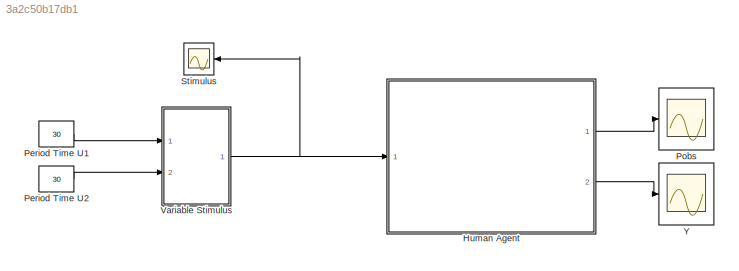
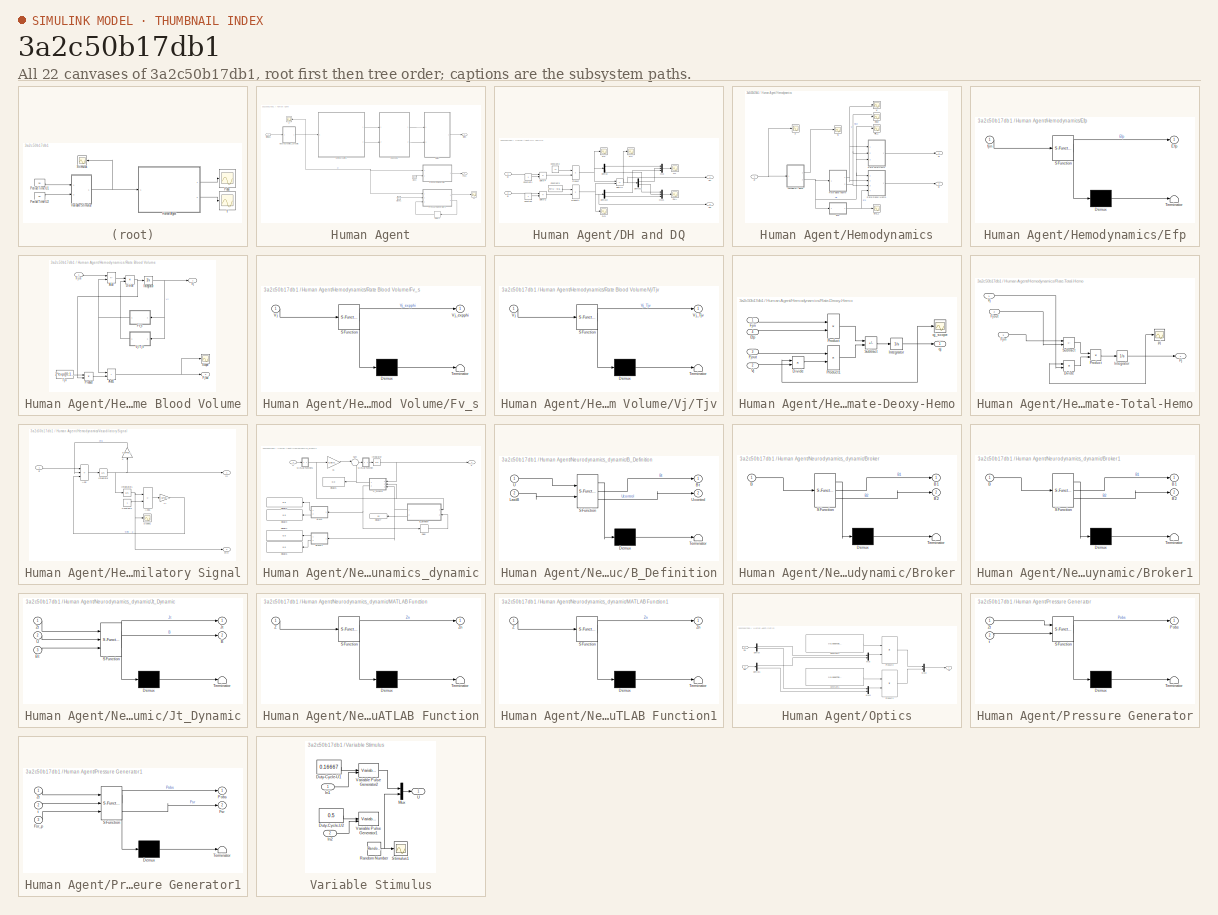
[diagram: thumbnail index - all 22 canvases of the model, root first then tree order]
MODEL slx_3a2c50b17db1
KIND model
CONFIG AbsTol = auto
CONFIG EnableMultiTasking = off
CONFIG FixedStep = 0.1
CONFIG MaxStep = auto
CONFIG MinStep = auto
CONFIG RelTol = 1e-3
CONFIG SampleTimeConstraint = Unconstrained
CONFIG SolverName = VariableStepAuto
CONFIG StartTime = 0.0
CONFIG StopTime = 30
BLOCK [SubSystem] Human Agent
  Ports = [1, 2]
  RequestExecContextInheritance = off
BLOCK [Clock] Human Agent/Clock
BLOCK [Clock] Human Agent/Clock1
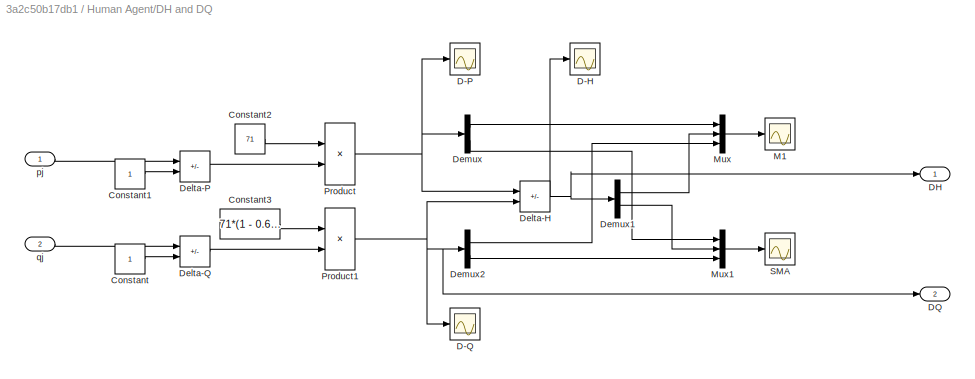
BLOCK [SubSystem] Human Agent/DH and DQ
  Ports = [2, 2]
  RequestExecContextInheritance = off
BLOCK [Constant] Human Agent/DH and DQ/Constant
BLOCK [Constant] Human Agent/DH and DQ/Constant1
BLOCK [Constant] Human Agent/DH and DQ/Constant2
  Value = 71
BLOCK [Constant] Human Agent/DH and DQ/Constant3
  Value = 71*(1 - 0.65)
BLOCK [Scope] Human Agent/DH and DQ/D-H
  Floating = off
  NumInputPorts = 1
  Ports = [1]
  ScopeSpecificationString = Simulink.scopes.TimeScopeBlockCfg('CurrentConfiguration', extmgr.ConfigurationSet(extmgr.Configuration('Core','General UI',true),extmgr.Configuration('Core','Source UI',true),extmgr.Configuration('Sources','WiredSimulink',true,'DataLoggingVariableName','ScopeData7'),extmgr.Configuration('Visuals','Time Domain',true,'SerializedDisplays',{struct('MinYLimReal','-2.91276','MaxYLimReal','17.16126','YLa...<+1449ch>
BLOCK [Scope] Human Agent/DH and DQ/D-P
  Floating = off
  NumInputPorts = 1
  Ports = [1]
  ScopeSpecificationString = Simulink.scopes.TimeScopeBlockCfg('CurrentConfiguration', extmgr.ConfigurationSet(extmgr.Configuration('Core','General UI',true),extmgr.Configuration('Core','Source UI',true),extmgr.Configuration('Sources','WiredSimulink',true,'DataLoggingVariableName','ScopeData5'),extmgr.Configuration('Visuals','Time Domain',true,'SerializedDisplays',{struct('MinYLimReal','-2.54989','MaxYLimReal','15.75385','YLa...<+1449ch>
BLOCK [Scope] Human Agent/DH and DQ/D-Q
  Floating = off
  NumInputPorts = 1
  Ports = [1]
  ScopeSpecificationString = Simulink.scopes.TimeScopeBlockCfg('CurrentConfiguration', extmgr.ConfigurationSet(extmgr.Configuration('Core','General UI',true),extmgr.Configuration('Core','Source UI',true),extmgr.Configuration('Sources','WiredSimulink',true,'DataLoggingVariableName','ScopeData6'),extmgr.Configuration('Visuals','Time Domain',true,'SerializedDisplays',{struct('MinYLimReal','-1.63975','MaxYLimReal','0.38869','YLab...<+1447ch>
BLOCK [Outport] Human Agent/DH and DQ/DH
BLOCK [Outport] Human Agent/DH and DQ/DQ
  Port = 2
BLOCK [Sum] Human Agent/DH and DQ/Delta-H
  IconShape = rectangular
  Inputs = +-
  Ports = [2, 1]
BLOCK [Sum] Human Agent/DH and DQ/Delta-P
  IconShape = rectangular
  Inputs = +-
  Ports = [2, 1]
BLOCK [Sum] Human Agent/DH and DQ/Delta-Q
  IconShape = rectangular
  Inputs = +-
  Ports = [2, 1]
BLOCK [Demux] Human Agent/DH and DQ/Demux
  Outputs = 2
  Ports = [1, 2]
BLOCK [Demux] Human Agent/DH and DQ/Demux1
  Outputs = 2
  Ports = [1, 2]
BLOCK [Demux] Human Agent/DH and DQ/Demux2
  Outputs = 2
  Ports = [1, 2]
BLOCK [Scope] Human Agent/DH and DQ/M1
  Floating = off
  NumInputPorts = 1
  Ports = [1]
  ScopeSpecificationString = Simulink.scopes.TimeScopeBlockCfg('CurrentConfiguration', extmgr.ConfigurationSet(extmgr.Configuration('Core','General UI',true),extmgr.Configuration('Core','Source UI',true),extmgr.Configuration('Sources','WiredSimulink',true,'DataLoggingVariableName','ScopeData8'),extmgr.Configuration('Visuals','Time Domain',true,'SerializedDisplays',{struct('MinYLimReal','-2.54514','MaxYLimReal','8.43627','YLab...<+1735ch>
BLOCK [Mux] Human Agent/DH and DQ/Mux
  DisplayOption = bar
  Inputs = 3
  Ports = [3, 1]
BLOCK [Mux] Human Agent/DH and DQ/Mux1
  DisplayOption = bar
  Inputs = 3
  Ports = [3, 1]
BLOCK [Product] Human Agent/DH and DQ/Product
  Ports = [2, 1]
BLOCK [Product] Human Agent/DH and DQ/Product1
  Ports = [2, 1]
BLOCK [Scope] Human Agent/DH and DQ/SMA
  Floating = off
  NumInputPorts = 1
  Ports = [1]
  ScopeSpecificationString = Simulink.scopes.TimeScopeBlockCfg('CurrentConfiguration', extmgr.ConfigurationSet(extmgr.Configuration('Core','General UI',true),extmgr.Configuration('Core','Source UI',true),extmgr.Configuration('Sources','WiredSimulink',true,'DataLoggingVariableName','ScopeData9'),extmgr.Configuration('Visuals','Time Domain',true,'SerializedDisplays',{struct('MinYLimReal','-3.33791','MaxYLimReal','17.25675','YLa...<+1774ch>
BLOCK [Inport] Human Agent/DH and DQ/pj
BLOCK [Inport] Human Agent/DH and DQ/qj
  Port = 2
BLOCK [Delay] Human Agent/Delay2
  DelayLength = 1
  InitialCondition = 0.0001
  InputPortMap = u0
  Ports = [1, 1]
BLOCK [SubSystem] Human Agent/Hemodynamics
  Ports = [1, 2]
  RequestExecContextInheritance = off
BLOCK [SubSystem] Human Agent/Hemodynamics/Efp
  ErrorFcn = Stateflow.Translate.translate
  PermitHierarchicalResolution = ExplicitOnly
  Ports = [1, 1]
  RequestExecContextInheritance = off
  SFBlockType = MATLAB Function
  TreatAsAtomicUnit = on
BLOCK [Demux] Human Agent/Hemodynamics/Efp/ Demux 
  Outputs = 1
  Ports = [1, 1]
BLOCK [S-Function] Human Agent/Hemodynamics/Efp/ SFunction 
  EnableBusSupport = on
  FunctionName = sf_sfun
  PortCounts = [1 2]
  Ports = [1, 2]
  SFcnIsStateOwnerBlock = off
  SFunctionDeploymentMode = off
  Tag = Stateflow S-Function 1
BLOCK [Terminator] Human Agent/Hemodynamics/Efp/ Terminator 
BLOCK [Outport] Human Agent/Hemodynamics/Efp/Efp
BLOCK [Inport] Human Agent/Hemodynamics/Efp/fjin
BLOCK [Scope] Human Agent/Hemodynamics/Efp_1
  Floating = off
  NumInputPorts = 1
  Ports = [1]
  ScopeSpecificationString = Simulink.scopes.TimeScopeBlockCfg('CurrentConfiguration', extmgr.ConfigurationSet(extmgr.Configuration('Core','General UI',true),extmgr.Configuration('Core','Source UI',true),extmgr.Configuration('Sources','WiredSimulink',true,'DataLoggingVariableName','ScopeData7'),extmgr.Configuration('Visuals','Time Domain',true,'SerializedDisplays',{struct('MinYLimReal','0.87922','MaxYLimReal','1.03497','YLabe...<+1400ch>
BLOCK [Scope] Human Agent/Hemodynamics/Fjin_1
  Floating = off
  NumInputPorts = 1
  Ports = [1]
  ScopeSpecificationString = Simulink.scopes.TimeScopeBlockCfg('CurrentConfiguration', extmgr.ConfigurationSet(extmgr.Configuration('Core','General UI',true),extmgr.Configuration('Core','Source UI',true),extmgr.Configuration('Sources','WiredSimulink',true,'DataLoggingVariableName','ScopeData6'),extmgr.Configuration('Visuals','Time Domain',true,'SerializedDisplays',{struct('MinYLimReal','0.95597','MaxYLimReal','1.16405','YLabe...<+1403ch>
BLOCK [Scope] Human Agent/Hemodynamics/Fjout
  Floating = off
  NumInputPorts = 1
  Ports = [1]
  ScopeSpecificationString = Simulink.scopes.TimeScopeBlockCfg('CurrentConfiguration', extmgr.ConfigurationSet(extmgr.Configuration('Core','General UI',true),extmgr.Configuration('Core','Source UI',true),extmgr.Configuration('Sources','WiredSimulink',true,'DataLoggingVariableName','ScopeData5'),extmgr.Configuration('Visuals','Time Domain',true,'SerializedDisplays',{struct('MinYLimReal','0.96309','MaxYLimReal','1.1501','YLabel...<+1400ch>
BLOCK [Outport] Human Agent/Hemodynamics/Pj
BLOCK [SubSystem] Human Agent/Hemodynamics/Rate Blood Volume
  Ports = [1, 2]
  RequestExecContextInheritance = off
BLOCK [Sum] Human Agent/Hemodynamics/Rate Blood Volume/Add
  IconShape = rectangular
  Inputs = +-
  Ports = [2, 1]
BLOCK [Sum] Human Agent/Hemodynamics/Rate Blood Volume/Add1
  IconShape = rectangular
  Ports = [2, 1]
BLOCK [Product] Human Agent/Hemodynamics/Rate Blood Volume/Divide
  Inputs = */
  Ports = [2, 1]
BLOCK [Inport] Human Agent/Hemodynamics/Rate Blood Volume/Fjin
BLOCK [Outport] Human Agent/Hemodynamics/Rate Blood Volume/Fjout
  Port = 2
BLOCK [SubSystem] Human Agent/Hemodynamics/Rate Blood Volume/Fv_s
  ErrorFcn = Stateflow.Translate.translate
  PermitHierarchicalResolution = ExplicitOnly
  Ports = [1, 1]
  RequestExecContextInheritance = off
  SFBlockType = MATLAB Function
  TreatAsAtomicUnit = on
BLOCK [Demux] Human Agent/Hemodynamics/Rate Blood Volume/Fv_s/ Demux 
  Outputs = 1
  Ports = [1, 1]
BLOCK [S-Function] Human Agent/Hemodynamics/Rate Blood Volume/Fv_s/ SFunction 
  EnableBusSupport = on
  FunctionName = sf_sfun
  PortCounts = [1 2]
  Ports = [1, 2]
  SFcnIsStateOwnerBlock = off
  SFunctionDeploymentMode = off
  Tag = Stateflow S-Function 10
BLOCK [Terminator] Human Agent/Hemodynamics/Rate Blood Volume/Fv_s/ Terminator 
BLOCK [Inport] Human Agent/Hemodynamics/Rate Blood Volume/Fv_s/Vj
BLOCK [Outport] Human Agent/Hemodynamics/Rate Blood Volume/Fv_s/Vj_expphi
BLOCK [Integrator] Human Agent/Hemodynamics/Rate Blood Volume/Integrator
  InitialCondition = exp([0;0])
  Ports = [1, 1]
BLOCK [Product] Human Agent/Hemodynamics/Rate Blood Volume/Product
  Ports = [2, 1]
BLOCK [Scope] Human Agent/Hemodynamics/Rate Blood Volume/Scope
  Floating = off
  NumInputPorts = 1
  Ports = [1]
  ScopeSpecificationString = Simulink.scopes.TimeScopeBlockCfg('CurrentConfiguration', extmgr.ConfigurationSet(extmgr.Configuration('Core','General UI',true),extmgr.Configuration('Core','Source UI',true),extmgr.Configuration('Sources','WiredSimulink',true,'DataLoggingVariableName','ScopeData2'),extmgr.Configuration('Visuals','Time Domain',true,'SerializedDisplays',{struct('MinYLimReal','0.96417','MaxYLimReal','1.14994','YLabe...<+1372ch>
BLOCK [Constant] Human Agent/Hemodynamics/Rate Blood Volume/Tjv
  Value = 2*exp([0;1])
BLOCK [Outport] Human Agent/Hemodynamics/Rate Blood Volume/Vj
BLOCK [SubSystem] Human Agent/Hemodynamics/Rate Blood Volume/Vj//Tjv
  ErrorFcn = Stateflow.Translate.translate
  PermitHierarchicalResolution = ExplicitOnly
  Ports = [1, 1]
  RequestExecContextInheritance = off
  SFBlockType = MATLAB Function
  TreatAsAtomicUnit = on
BLOCK [Demux] Human Agent/Hemodynamics/Rate Blood Volume/Vj//Tjv/ Demux 
  Outputs = 1
  Ports = [1, 1]
BLOCK [S-Function] Human Agent/Hemodynamics/Rate Blood Volume/Vj//Tjv/ SFunction 
  EnableBusSupport = on
  FunctionName = sf_sfun
  PortCounts = [1 2]
  Ports = [1, 2]
  SFcnIsStateOwnerBlock = off
  SFunctionDeploymentMode = off
  Tag = Stateflow S-Function 11
BLOCK [Terminator] Human Agent/Hemodynamics/Rate Blood Volume/Vj//Tjv/ Terminator 
BLOCK [Inport] Human Agent/Hemodynamics/Rate Blood Volume/Vj//Tjv/Vj
BLOCK [Outport] Human Agent/Hemodynamics/Rate Blood Volume/Vj//Tjv/Vj_Tjv
BLOCK [SubSystem] Human Agent/Hemodynamics/Rate-Deoxy-Hemo
  Ports = [4, 1]
  RequestExecContextInheritance = off
BLOCK [Product] Human Agent/Hemodynamics/Rate-Deoxy-Hemo/Divide
  Inputs = */
  Ports = [2, 1]
BLOCK [Inport] Human Agent/Hemodynamics/Rate-Deoxy-Hemo/Efp
  Port = 4
BLOCK [Inport] Human Agent/Hemodynamics/Rate-Deoxy-Hemo/Fjin
BLOCK [Inport] Human Agent/Hemodynamics/Rate-Deoxy-Hemo/Fjout
  Port = 3
BLOCK [Integrator] Human Agent/Hemodynamics/Rate-Deoxy-Hemo/Integrator
  InitialCondition = exp([0;0])
  Ports = [1, 1]
BLOCK [Product] Human Agent/Hemodynamics/Rate-Deoxy-Hemo/Product
  Ports = [2, 1]
BLOCK [Product] Human Agent/Hemodynamics/Rate-Deoxy-Hemo/Product1
  Ports = [2, 1]
BLOCK [Sum] Human Agent/Hemodynamics/Rate-Deoxy-Hemo/Subtract
  IconShape = rectangular
  Inputs = +-
  Ports = [2, 1]
BLOCK [Inport] Human Agent/Hemodynamics/Rate-Deoxy-Hemo/Vj
  Port = 2
BLOCK [Outport] Human Agent/Hemodynamics/Rate-Deoxy-Hemo/qj
BLOCK [Scope] Human Agent/Hemodynamics/Rate-Deoxy-Hemo/qj_scope
  Floating = off
  NumInputPorts = 1
  Ports = [1]
  ScopeSpecificationString = Simulink.scopes.TimeScopeBlockCfg('CurrentConfiguration', extmgr.ConfigurationSet(extmgr.Configuration('Core','General UI',true),extmgr.Configuration('Core','Source UI',true),extmgr.Configuration('Sources','WiredSimulink',true,'DataLoggingVariableName','ScopeData1'),extmgr.Configuration('Visuals','Time Domain',true,'SerializedDisplays',{struct('MinYLimReal','0.9335','MaxYLimReal','1.01624','YLabel...<+1411ch>
BLOCK [SubSystem] Human Agent/Hemodynamics/Rate-Total-Hemo
  Ports = [3, 1]
  RequestExecContextInheritance = off
BLOCK [Product] Human Agent/Hemodynamics/Rate-Total-Hemo/Divide
  Inputs = */
  Ports = [2, 1]
BLOCK [Inport] Human Agent/Hemodynamics/Rate-Total-Hemo/Fjin
  Port = 3
BLOCK [Inport] Human Agent/Hemodynamics/Rate-Total-Hemo/Fjout
  Port = 2
BLOCK [Integrator] Human Agent/Hemodynamics/Rate-Total-Hemo/Integrator
  InitialCondition = exp([0;0])
  Ports = [1, 1]
BLOCK [Outport] Human Agent/Hemodynamics/Rate-Total-Hemo/Pj
BLOCK [Product] Human Agent/Hemodynamics/Rate-Total-Hemo/Product
  Ports = [2, 1]
BLOCK [Sum] Human Agent/Hemodynamics/Rate-Total-Hemo/Subtract
  IconShape = rectangular
  Inputs = +-
  Ports = [2, 1]
BLOCK [Inport] Human Agent/Hemodynamics/Rate-Total-Hemo/Vj
BLOCK [Scope] Human Agent/Hemodynamics/Rate-Total-Hemo/pj
  Floating = off
  NumInputPorts = 1
  Ports = [1]
  ScopeSpecificationString = Simulink.scopes.TimeScopeBlockCfg('CurrentConfiguration', extmgr.ConfigurationSet(extmgr.Configuration('Core','General UI',true),extmgr.Configuration('Core','Source UI',true),extmgr.Configuration('Sources','WiredSimulink',true,'DataLoggingVariableName','ScopeData2'),extmgr.Configuration('Visuals','Time Domain',true,'SerializedDisplays',{struct('MinYLimReal','0.96327','MaxYLimReal','1.22259','YLabe...<+1415ch>
BLOCK [Scope] Human Agent/Hemodynamics/Sj
  Floating = off
  NumInputPorts = 1
  Ports = [1]
  ScopeSpecificationString = Simulink.scopes.TimeScopeBlockCfg('CurrentConfiguration', extmgr.ConfigurationSet(extmgr.Configuration('Core','General UI',true),extmgr.Configuration('Core','Source UI',true),extmgr.Configuration('Sources','WiredSimulink',true,'DataLoggingVariableName','ScopeData1'),extmgr.Configuration('Visuals','Time Domain',true,'SerializedDisplays',{struct('MinYLimReal','-0.04954','MaxYLimReal','0.04574','YLab...<+1438ch>
BLOCK [SubSystem] Human Agent/Hemodynamics/Vasodilatory Signal
  Ports = [1, 2]
  RequestExecContextInheritance = off
BLOCK [Sum] Human Agent/Hemodynamics/Vasodilatory Signal/Add
  IconShape = rectangular
  Inputs = +--
  Ports = [3, 1]
BLOCK [Sum] Human Agent/Hemodynamics/Vasodilatory Signal/Add1
  IconShape = rectangular
  Inputs = +-
  Ports = [2, 1]
BLOCK [Constant] Human Agent/Hemodynamics/Vasodilatory Signal/Constant1
BLOCK [Outport] Human Agent/Hemodynamics/Vasodilatory Signal/Fjin
  Port = 2
BLOCK [Integrator] Human Agent/Hemodynamics/Vasodilatory Signal/Integrator
  Ports = [1, 1]
BLOCK [Integrator] Human Agent/Hemodynamics/Vasodilatory Signal/Integrator1
  InitialCondition = exp([0;0])
  Ports = [1, 1]
BLOCK [Gain] Human Agent/Hemodynamics/Vasodilatory Signal/K
  Gain = 0.64*exp([0;0.05])
  NameLocation = right
BLOCK [Scope] Human Agent/Hemodynamics/Vasodilatory Signal/Scope1
  Floating = off
  NumInputPorts = 1
  Ports = [1]
  ScopeSpecificationString = Simulink.scopes.TimeScopeBlockCfg('CurrentConfiguration', extmgr.ConfigurationSet(extmgr.Configuration('Core','General UI',true),extmgr.Configuration('Core','Source UI',true),extmgr.Configuration('Sources','WiredSimulink',true,'DataLoggingVariableName','ScopeData1'),extmgr.Configuration('Visuals','Time Domain',true,'SerializedDisplays',{struct('MinYLimReal','-0.02898','MaxYLimReal','0.08445','YLab...<+1370ch>
BLOCK [Outport] Human Agent/Hemodynamics/Vasodilatory Signal/Sj
BLOCK [Gain] Human Agent/Hemodynamics/Vasodilatory Signal/Yj
  Gain = 0.32*exp([0;0.05])
BLOCK [Inport] Human Agent/Hemodynamics/Vasodilatory Signal/Zj
BLOCK [Scope] Human Agent/Hemodynamics/Vj
  Floating = off
  NumInputPorts = 1
  Ports = [1]
  ScopeSpecificationString = Simulink.scopes.TimeScopeBlockCfg('CurrentConfiguration', extmgr.ConfigurationSet(extmgr.Configuration('Core','General UI',true),extmgr.Configuration('Core','Source UI',true),extmgr.Configuration('Sources','WiredSimulink',true,'DataLoggingVariableName','ScopeData4'),extmgr.Configuration('Visuals','Time Domain',true,'SerializedDisplays',{struct('MinYLimReal','0.99041','MaxYLimReal','1.04043','YLabe...<+1398ch>
BLOCK [Scope] Human Agent/Hemodynamics/Z
  Floating = off
  NumInputPorts = 1
  Ports = [1]
  ScopeSpecificationString = Simulink.scopes.TimeScopeBlockCfg('CurrentConfiguration', extmgr.ConfigurationSet(extmgr.Configuration('Core','General UI',true),extmgr.Configuration('Core','Source UI',true),extmgr.Configuration('Sources','WiredSimulink',true),extmgr.Configuration('Visuals','Time Domain',true,'SerializedDisplays',{struct('MinYLimReal','-0.0098','MaxYLimReal','0.05168','YLabelReal','','MinYLimMag','0.00000','MaxYL...<+1357ch>
BLOCK [Inport] Human Agent/Hemodynamics/Zj
BLOCK [Outport] Human Agent/Hemodynamics/qj
  Port = 2
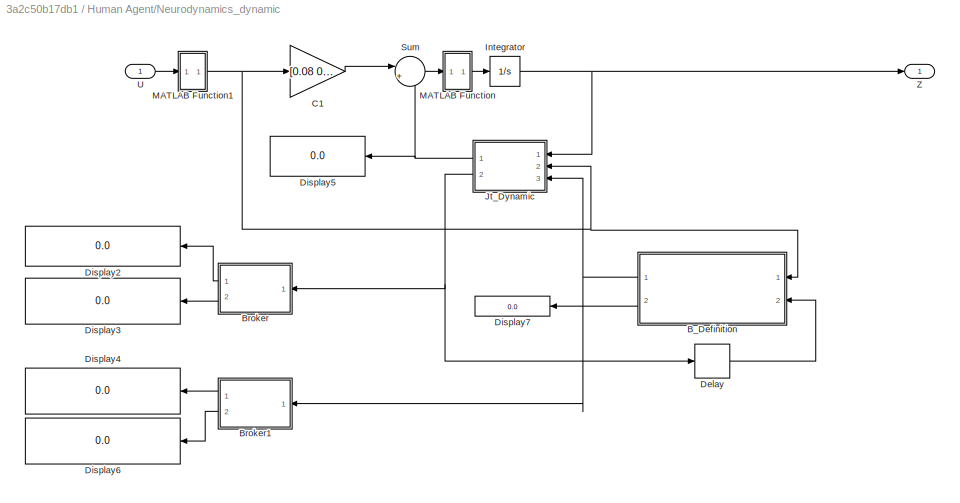
BLOCK [SubSystem] Human Agent/Neurodynamics_dynamic
  Ports = [1, 1]
  RequestExecContextInheritance = off
BLOCK [SubSystem] Human Agent/Neurodynamics_dynamic/B_Definition
  ErrorFcn = Stateflow.Translate.translate
  PermitHierarchicalResolution = ExplicitOnly
  Ports = [2, 2]
  RequestExecContextInheritance = off
  SFBlockType = MATLAB Function
  TreatAsAtomicUnit = on
BLOCK [Demux] Human Agent/Neurodynamics_dynamic/B_Definition/ Demux 
  Outputs = 1
  Ports = [1, 1]
BLOCK [S-Function] Human Agent/Neurodynamics_dynamic/B_Definition/ SFunction 
  EnableBusSupport = on
  FunctionName = sf_sfun
  PortCounts = [2 3]
  Ports = [2, 3]
  SFcnIsStateOwnerBlock = off
  SFunctionDeploymentMode = off
  Tag = Stateflow S-Function 16
BLOCK [Terminator] Human Agent/Neurodynamics_dynamic/B_Definition/ Terminator 
BLOCK [Outport] Human Agent/Neurodynamics_dynamic/B_Definition/Bt
BLOCK [Inport] Human Agent/Neurodynamics_dynamic/B_Definition/LastB
  Port = 2
BLOCK [Inport] Human Agent/Neurodynamics_dynamic/B_Definition/U
BLOCK [Outport] Human Agent/Neurodynamics_dynamic/B_Definition/Ucontrol
  Port = 2
BLOCK [SubSystem] Human Agent/Neurodynamics_dynamic/Broker
  ErrorFcn = Stateflow.Translate.translate
  PermitHierarchicalResolution = ExplicitOnly
  Ports = [1, 2]
  RequestExecContextInheritance = off
  SFBlockType = MATLAB Function
  TreatAsAtomicUnit = on
BLOCK [Demux] Human Agent/Neurodynamics_dynamic/Broker/ Demux 
  Outputs = 1
  Ports = [1, 1]
BLOCK [S-Function] Human Agent/Neurodynamics_dynamic/Broker/ SFunction 
  EnableBusSupport = on
  FunctionName = sf_sfun
  PortCounts = [1 3]
  Ports = [1, 3]
  SFcnIsStateOwnerBlock = off
  SFunctionDeploymentMode = off
  Tag = Stateflow S-Function 17
BLOCK [Terminator] Human Agent/Neurodynamics_dynamic/Broker/ Terminator 
BLOCK [Inport] Human Agent/Neurodynamics_dynamic/Broker/B
BLOCK [Outport] Human Agent/Neurodynamics_dynamic/Broker/B1
BLOCK [Outport] Human Agent/Neurodynamics_dynamic/Broker/B2
  Port = 2
BLOCK [SubSystem] Human Agent/Neurodynamics_dynamic/Broker1
  ErrorFcn = Stateflow.Translate.translate
  PermitHierarchicalResolution = ExplicitOnly
  Ports = [1, 2]
  RequestExecContextInheritance = off
  SFBlockType = MATLAB Function
  TreatAsAtomicUnit = on
BLOCK [Demux] Human Agent/Neurodynamics_dynamic/Broker1/ Demux 
  Outputs = 1
  Ports = [1, 1]
BLOCK [S-Function] Human Agent/Neurodynamics_dynamic/Broker1/ SFunction 
  EnableBusSupport = on
  FunctionName = sf_sfun
  PortCounts = [1 3]
  Ports = [1, 3]
  SFcnIsStateOwnerBlock = off
  SFunctionDeploymentMode = off
  Tag = Stateflow S-Function 18
BLOCK [Terminator] Human Agent/Neurodynamics_dynamic/Broker1/ Terminator 
BLOCK [Inport] Human Agent/Neurodynamics_dynamic/Broker1/B
BLOCK [Outport] Human Agent/Neurodynamics_dynamic/Broker1/B1
BLOCK [Outport] Human Agent/Neurodynamics_dynamic/Broker1/B2
  Port = 2
BLOCK [Gain] Human Agent/Neurodynamics_dynamic/C1
  Gain = [0.08 0;0.06 0]
  Multiplication = Matrix(K*u) (u vector)
BLOCK [Delay] Human Agent/Neurodynamics_dynamic/Delay
  DelayLength = 1
  InitialCondition = 0
  InputPortMap = u0
  NameLocation = top
  Ports = [1, 1]
BLOCK [Display] Human Agent/Neurodynamics_dynamic/Display2
  Decimation = 1
  Ports = [1]
BLOCK [Display] Human Agent/Neurodynamics_dynamic/Display3
  Decimation = 1
  Ports = [1]
BLOCK [Display] Human Agent/Neurodynamics_dynamic/Display4
  Decimation = 1
  Ports = [1]
BLOCK [Display] Human Agent/Neurodynamics_dynamic/Display5
  Decimation = 1
  Ports = [1]
BLOCK [Display] Human Agent/Neurodynamics_dynamic/Display6
  Decimation = 1
  Ports = [1]
BLOCK [Display] Human Agent/Neurodynamics_dynamic/Display7
  Decimation = 1
  Ports = [1]
BLOCK [Integrator] Human Agent/Neurodynamics_dynamic/Integrator
  Ports = [1, 1]
BLOCK [SubSystem] Human Agent/Neurodynamics_dynamic/Jt_Dynamic
  ErrorFcn = Stateflow.Translate.translate
  PermitHierarchicalResolution = ExplicitOnly
  Ports = [3, 2]
  RequestExecContextInheritance = off
  SFBlockType = MATLAB Function
  TreatAsAtomicUnit = on
BLOCK [Demux] Human Agent/Neurodynamics_dynamic/Jt_Dynamic/ Demux 
  Outputs = 1
  Ports = [1, 1]
BLOCK [S-Function] Human Agent/Neurodynamics_dynamic/Jt_Dynamic/ SFunction 
  EnableBusSupport = on
  FunctionName = sf_sfun
  PortCounts = [3 3]
  Ports = [3, 3]
  SFcnIsStateOwnerBlock = off
  SFunctionDeploymentMode = off
  Tag = Stateflow S-Function 20
BLOCK [Terminator] Human Agent/Neurodynamics_dynamic/Jt_Dynamic/ Terminator 
BLOCK [Outport] Human Agent/Neurodynamics_dynamic/Jt_Dynamic/B
  Port = 2
BLOCK [Inport] Human Agent/Neurodynamics_dynamic/Jt_Dynamic/Bt
  Port = 3
BLOCK [Outport] Human Agent/Neurodynamics_dynamic/Jt_Dynamic/Jt
BLOCK [Inport] Human Agent/Neurodynamics_dynamic/Jt_Dynamic/U
  Port = 2
BLOCK [Inport] Human Agent/Neurodynamics_dynamic/Jt_Dynamic/Zt
BLOCK [SubSystem] Human Agent/Neurodynamics_dynamic/MATLAB Function
  ErrorFcn = Stateflow.Translate.translate
  PermitHierarchicalResolution = ExplicitOnly
  Ports = [1, 1]
  RequestExecContextInheritance = off
  SFBlockType = MATLAB Function
  TreatAsAtomicUnit = on
BLOCK [Demux] Human Agent/Neurodynamics_dynamic/MATLAB Function/ Demux 
  Outputs = 1
  Ports = [1, 1]
BLOCK [S-Function] Human Agent/Neurodynamics_dynamic/MATLAB Function/ SFunction 
  EnableBusSupport = on
  FunctionName = sf_sfun
  PortCounts = [1 2]
  Ports = [1, 2]
  SFcnIsStateOwnerBlock = off
  SFunctionDeploymentMode = off
  Tag = Stateflow S-Function 21
BLOCK [Terminator] Human Agent/Neurodynamics_dynamic/MATLAB Function/ Terminator 
BLOCK [Inport] Human Agent/Neurodynamics_dynamic/MATLAB Function/Z
BLOCK [Outport] Human Agent/Neurodynamics_dynamic/MATLAB Function/Zn
BLOCK [SubSystem] Human Agent/Neurodynamics_dynamic/MATLAB Function1
  ErrorFcn = Stateflow.Translate.translate
  PermitHierarchicalResolution = ExplicitOnly
  Ports = [1, 1]
  RequestExecContextInheritance = off
  SFBlockType = MATLAB Function
  TreatAsAtomicUnit = on
BLOCK [Demux] Human Agent/Neurodynamics_dynamic/MATLAB Function1/ Demux 
  Outputs = 1
  Ports = [1, 1]
BLOCK [S-Function] Human Agent/Neurodynamics_dynamic/MATLAB Function1/ SFunction 
  EnableBusSupport = on
  FunctionName = sf_sfun
  PortCounts = [1 2]
  Ports = [1, 2]
  SFcnIsStateOwnerBlock = off
  SFunctionDeploymentMode = off
  Tag = Stateflow S-Function 22
BLOCK [Terminator] Human Agent/Neurodynamics_dynamic/MATLAB Function1/ Terminator 
BLOCK [Inport] Human Agent/Neurodynamics_dynamic/MATLAB Function1/Z
BLOCK [Outport] Human Agent/Neurodynamics_dynamic/MATLAB Function1/Zn
BLOCK [Sum] Human Agent/Neurodynamics_dynamic/Sum
  Inputs = |++
  Ports = [2, 1]
BLOCK [Inport] Human Agent/Neurodynamics_dynamic/U
BLOCK [Outport] Human Agent/Neurodynamics_dynamic/Z
BLOCK [SubSystem] Human Agent/Optics
  Ports = [2, 1]
  RequestExecContextInheritance = off
BLOCK [Constant] Human Agent/Optics/Constant1
  Value = [(0.00007358252*7.5) (0.0001104714*6.5);(0.0001159306*7.5) (0.00007858993*6.5)]
BLOCK [Constant] Human Agent/Optics/Constant4
  Value = [(0.00007358252*7.5) (0.0001104714*6.5);(0.0001159306*7.5) (0.00007858993*6.5)]
BLOCK [Inport] Human Agent/Optics/DH
BLOCK [Inport] Human Agent/Optics/DQ
  Port = 2
BLOCK [Demux] Human Agent/Optics/Demux
  Outputs = 2
  Ports = [1, 2]
BLOCK [Demux] Human Agent/Optics/Demux1
  Outputs = 2
  Ports = [1, 2]
BLOCK [Mux] Human Agent/Optics/Mux
  DisplayOption = bar
  Inputs = 2
  Ports = [2, 1]
BLOCK [Mux] Human Agent/Optics/Mux1
  DisplayOption = bar
  Inputs = 2
  Ports = [2, 1]
BLOCK [Mux] Human Agent/Optics/Mux2
  DisplayOption = bar
  Inputs = 2
  Ports = [2, 1]
BLOCK [Product] Human Agent/Optics/Product1
  Multiplication = Matrix(*)
  Ports = [2, 1]
BLOCK [Product] Human Agent/Optics/Product2
  Multiplication = Matrix(*)
  Ports = [2, 1]
BLOCK [Outport] Human Agent/Optics/Y1
BLOCK [Outport] Human Agent/Pobs
BLOCK [SubSystem] Human Agent/Pressure Generator
  ErrorFcn = Stateflow.Translate.translate
  PermitHierarchicalResolution = ExplicitOnly
  Ports = [2, 1]
  RequestExecContextInheritance = off
  SFBlockType = MATLAB Function
  TreatAsAtomicUnit = on
BLOCK [Demux] Human Agent/Pressure Generator/ Demux 
  Outputs = 1
  Ports = [1, 1]
BLOCK [S-Function] Human Agent/Pressure Generator/ SFunction 
  EnableBusSupport = on
  FunctionName = sf_sfun
  PortCounts = [2 2]
  Ports = [2, 2]
  SFcnIsStateOwnerBlock = off
  SFunctionDeploymentMode = off
  Tag = Stateflow S-Function 2
BLOCK [Terminator] Human Agent/Pressure Generator/ Terminator 
BLOCK [Outport] Human Agent/Pressure Generator/Pobs
BLOCK [Inport] Human Agent/Pressure Generator/Zt
BLOCK [Inport] Human Agent/Pressure Generator/t
  Port = 2
BLOCK [SubSystem] Human Agent/Pressure Generator1
  ErrorFcn = Stateflow.Translate.translate
  PermitHierarchicalResolution = ExplicitOnly
  Ports = [3, 2]
  RequestExecContextInheritance = off
  SFBlockType = MATLAB Function
  TreatAsAtomicUnit = on
BLOCK [Demux] Human Agent/Pressure Generator1/ Demux 
  Outputs = 1
  Ports = [1, 1]
BLOCK [S-Function] Human Agent/Pressure Generator1/ SFunction 
  EnableBusSupport = on
  FunctionName = sf_sfun
  PortCounts = [3 3]
  Ports = [3, 3]
  SFcnIsStateOwnerBlock = off
  SFunctionDeploymentMode = off
  Tag = Stateflow S-Function 3
BLOCK [Terminator] Human Agent/Pressure Generator1/ Terminator 
BLOCK [Outport] Human Agent/Pressure Generator1/Fsr
  Port = 2
BLOCK [Inport] Human Agent/Pressure Generator1/Fsr_p
  Port = 3
BLOCK [Outport] Human Agent/Pressure Generator1/Pobs
BLOCK [Inport] Human Agent/Pressure Generator1/Zt
BLOCK [Inport] Human Agent/Pressure Generator1/t
  Port = 2
BLOCK [Inport] Human Agent/Stimulus
BLOCK [Scope] Human Agent/Z
  Floating = off
  NumInputPorts = 1
  Ports = [1]
  ScopeSpecificationString = Simulink.scopes.TimeScopeBlockCfg('CurrentConfiguration', extmgr.ConfigurationSet(extmgr.Configuration('Core','General UI',true,'FigureColor',[0 0 0]),extmgr.Configuration('Core','Source UI',true),extmgr.Configuration('Sources','WiredSimulink',true,'DataLoggingVariableName','ScopeData1'),extmgr.Configuration('Visuals','Time Domain',true,'SerializedDisplays',{struct('MinYLimReal','-0.00965','MaxYLi...<+1646ch>
BLOCK [Scope] Human Agent/Z1
  Floating = off
  NumInputPorts = 1
  Ports = [1]
  ScopeSpecificationString = Simulink.scopes.TimeScopeBlockCfg('CurrentConfiguration', extmgr.ConfigurationSet(extmgr.Configuration('Core','General UI',true,'FigureColor',[0 0 0]),extmgr.Configuration('Core','Source UI',true),extmgr.Configuration('Sources','WiredSimulink',true,'DataLoggingVariableName','ScopeData1'),extmgr.Configuration('Visuals','Time Domain',true,'SerializedDisplays',{struct('MinYLimReal','-0.08252','MaxYLi...<+1651ch>
BLOCK [Outport] Human Agent/fNIRS
  Port = 2
BLOCK [Constant] Period Time U1
  Value = 30
BLOCK [Constant] Period Time U2
  Value = 30
BLOCK [Scope] Pobs
  Floating = off
  NumInputPorts = 1
  Ports = [1]
  ScopeSpecificationString = Simulink.scopes.TimeScopeBlockCfg('CurrentConfiguration', extmgr.ConfigurationSet(extmgr.Configuration('Core','General UI',true,'FigureColor',[1 1 1]),extmgr.Configuration('Core','Source UI',true),extmgr.Configuration('Sources','WiredSimulink',true,'DataLoggingVariableName','ScopeData1'),extmgr.Configuration('Visuals','Time Domain',true,'SerializedDisplays',{struct('MinYLimReal','-0.00838','MaxYLi...<+2109ch>
BLOCK [Scope] Stimulus
  Floating = off
  NumInputPorts = 1
  Ports = [1]
  ScopeSpecificationString = Simulink.scopes.TimeScopeBlockCfg('CurrentConfiguration', extmgr.ConfigurationSet(extmgr.Configuration('Core','General UI',true,'FigureColor',[0 0 0]),extmgr.Configuration('Core','Source UI',true),extmgr.Configuration('Sources','WiredSimulink',true,'DataLoggingVariableName','ScopeData1'),extmgr.Configuration('Visuals','Time Domain',true,'SerializedDisplays',{struct('MinYLimReal','-1.2445','MaxYLim...<+1692ch>
BLOCK [SubSystem] Variable Stimulus
  Ports = [2, 1]
  RequestExecContextInheritance = off
BLOCK [Constant] Variable Stimulus/Duty-Cycle-U1
  OutMax = [0.8]
  OutMin = [0]
  Value = 0.16667
BLOCK [Constant] Variable Stimulus/Duty-Cycle-U2
  OutMax = [0.8]
  OutMin = [0]
  Value = 0.5
BLOCK [Inport] Variable Stimulus/In1
BLOCK [Inport] Variable Stimulus/In2
  Port = 2
BLOCK [Mux] Variable Stimulus/Mux
  DisplayOption = bar
  Inputs = 2
  Ports = [2, 1]
BLOCK [RandomNumber] Variable Stimulus/Random Number
  SampleTime = 0.03
  Variance = 0.1
BLOCK [Scope] Variable Stimulus/Stimulus1
  Floating = off
  NumInputPorts = 1
  Ports = [1]
  ScopeSpecificationString = Simulink.scopes.TimeScopeBlockCfg('CurrentConfiguration', extmgr.ConfigurationSet(extmgr.Configuration('Core','General UI',true,'FigureColor',[0 0 0]),extmgr.Configuration('Core','Source UI',true),extmgr.Configuration('Sources','WiredSimulink',true,'DataLoggingVariableName','ScopeData1'),extmgr.Configuration('Visuals','Time Domain',true,'SerializedDisplays',{struct('MinYLimReal','-1.2445','MaxYLim...<+1686ch>
BLOCK [Outport] Variable Stimulus/U
BLOCK [VariablePulseGenerator] Variable Stimulus/Variable Pulse Generator1
  RunAtFixedTimeIntervals = on
  SampleTime = 1/10.4
BLOCK [VariablePulseGenerator] Variable Stimulus/Variable Pulse Generator2
  RunAtFixedTimeIntervals = on
  SampleTime = 1/10.4
BLOCK [Scope] Y
  Floating = off
  NumInputPorts = 1
  Ports = [1]
  ScopeSpecificationString = Simulink.scopes.TimeScopeBlockCfg('CurrentConfiguration', extmgr.ConfigurationSet(extmgr.Configuration('Core','General UI',true,'FigureColor',[1 1 1]),extmgr.Configuration('Core','Source UI',true),extmgr.Configuration('Sources','WiredSimulink',true,'DataLoggingVariableName','ScopeData2'),extmgr.Configuration('Visuals','Time Domain',true,'SerializedDisplays',{struct('MinYLimReal','-0.00213','MaxYLi...<+2161ch>
LINE Human Agent/Clock1:1 -> Human Agent/Pressure Generator1:2
LINE Human Agent/Clock:1 -> Human Agent/Pressure Generator:2
LINE Human Agent/DH and DQ/Constant1:1 -> Human Agent/DH and DQ/Delta-P:2
LINE Human Agent/DH and DQ/Constant2:1 -> Human Agent/DH and DQ/Product:1
LINE Human Agent/DH and DQ/Constant3:1 -> Human Agent/DH and DQ/Product1:1
LINE Human Agent/DH and DQ/Constant:1 -> Human Agent/DH and DQ/Delta-Q:2
NET Human Agent/DH and DQ/Delta-H:1 -> Human Agent/DH and DQ/D-H:1, Human Agent/DH and DQ/DH:1, Human Agent/DH and DQ/Demux1:1
LINE Human Agent/DH and DQ/Delta-P:1 -> Human Agent/DH and DQ/Product:2
LINE Human Agent/DH and DQ/Delta-Q:1 -> Human Agent/DH and DQ/Product1:2
LINE Human Agent/DH and DQ/Demux1:1 -> Human Agent/DH and DQ/Mux:2
LINE Human Agent/DH and DQ/Demux1:2 -> Human Agent/DH and DQ/Mux1:2
LINE Human Agent/DH and DQ/Demux2:1 -> Human Agent/DH and DQ/Mux:3
LINE Human Agent/DH and DQ/Demux2:2 -> Human Agent/DH and DQ/Mux1:3
LINE Human Agent/DH and DQ/Demux:1 -> Human Agent/DH and DQ/Mux:1
LINE Human Agent/DH and DQ/Demux:2 -> Human Agent/DH and DQ/Mux1:1
LINE Human Agent/DH and DQ/Mux1:1 -> Human Agent/DH and DQ/SMA:1
LINE Human Agent/DH and DQ/Mux:1 -> Human Agent/DH and DQ/M1:1
NET Human Agent/DH and DQ/Product1:1 -> Human Agent/DH and DQ/D-Q:1, Human Agent/DH and DQ/DQ:1, Human Agent/DH and DQ/Delta-H:2, Human Agent/DH and DQ/Demux2:1
NET Human Agent/DH and DQ/Product:1 -> Human Agent/DH and DQ/D-P:1, Human Agent/DH and DQ/Delta-H:1, Human Agent/DH and DQ/Demux:1
LINE Human Agent/DH and DQ/pj:1 -> Human Agent/DH and DQ/Delta-P:1
LINE Human Agent/DH and DQ/qj:1 -> Human Agent/DH and DQ/Delta-Q:1
LINE Human Agent/DH and DQ:1 -> Human Agent/Optics:1
LINE Human Agent/DH and DQ:2 -> Human Agent/Optics:2
LINE Human Agent/Delay2:1 -> Human Agent/Pressure Generator1:3
NET Human Agent/Hemodynamics/Efp:1 -> Human Agent/Hemodynamics/Efp_1:1, Human Agent/Hemodynamics/Rate-Deoxy-Hemo:4
NET Human Agent/Hemodynamics/Rate Blood Volume/Add1:1 -> Human Agent/Hemodynamics/Rate Blood Volume/Fjout:1, Human Agent/Hemodynamics/Rate Blood Volume/Scope:1
LINE Human Agent/Hemodynamics/Rate Blood Volume/Add:1 -> Human Agent/Hemodynamics/Rate Blood Volume/Divide:1
NET Human Agent/Hemodynamics/Rate Blood Volume/Divide:1 -> Human Agent/Hemodynamics/Rate Blood Volume/Integrator:1, Human Agent/Hemodynamics/Rate Blood Volume/Product:2
LINE Human Agent/Hemodynamics/Rate Blood Volume/Fjin:1 -> Human Agent/Hemodynamics/Rate Blood Volume/Add:1
NET Human Agent/Hemodynamics/Rate Blood Volume/Fv_s:1 -> Human Agent/Hemodynamics/Rate Blood Volume/Add1:1, Human Agent/Hemodynamics/Rate Blood Volume/Add:2
NET Human Agent/Hemodynamics/Rate Blood Volume/Integrator:1 -> Human Agent/Hemodynamics/Rate Blood Volume/Fv_s:1, Human Agent/Hemodynamics/Rate Blood Volume/Vj//Tjv:1, Human Agent/Hemodynamics/Rate Blood Volume/Vj:1
LINE Human Agent/Hemodynamics/Rate Blood Volume/Product:1 -> Human Agent/Hemodynamics/Rate Blood Volume/Add1:2
LINE Human Agent/Hemodynamics/Rate Blood Volume/Tjv:1 -> Human Agent/Hemodynamics/Rate Blood Volume/Product:1
LINE Human Agent/Hemodynamics/Rate Blood Volume/Vj//Tjv:1 -> Human Agent/Hemodynamics/Rate Blood Volume/Divide:2
NET Human Agent/Hemodynamics/Rate Blood Volume:1 -> Human Agent/Hemodynamics/Rate-Deoxy-Hemo:2, Human Agent/Hemodynamics/Rate-Total-Hemo:1, Human Agent/Hemodynamics/Vj:1
NET Human Agent/Hemodynamics/Rate Blood Volume:2 -> Human Agent/Hemodynamics/Fjout:1, Human Agent/Hemodynamics/Rate-Deoxy-Hemo:3, Human Agent/Hemodynamics/Rate-Total-Hemo:2
LINE Human Agent/Hemodynamics/Rate-Deoxy-Hemo/Divide:1 -> Human Agent/Hemodynamics/Rate-Deoxy-Hemo/Product1:2
LINE Human Agent/Hemodynamics/Rate-Deoxy-Hemo/Efp:1 -> Human Agent/Hemodynamics/Rate-Deoxy-Hemo/Product:2
LINE Human Agent/Hemodynamics/Rate-Deoxy-Hemo/Fjin:1 -> Human Agent/Hemodynamics/Rate-Deoxy-Hemo/Product:1
LINE Human Agent/Hemodynamics/Rate-Deoxy-Hemo/Fjout:1 -> Human Agent/Hemodynamics/Rate-Deoxy-Hemo/Product1:1
NET Human Agent/Hemodynamics/Rate-Deoxy-Hemo/Integrator:1 -> Human Agent/Hemodynamics/Rate-Deoxy-Hemo/Divide:1, Human Agent/Hemodynamics/Rate-Deoxy-Hemo/qj:1, Human Agent/Hemodynamics/Rate-Deoxy-Hemo/qj_scope:1
LINE Human Agent/Hemodynamics/Rate-Deoxy-Hemo/Product1:1 -> Human Agent/Hemodynamics/Rate-Deoxy-Hemo/Subtract:2
LINE Human Agent/Hemodynamics/Rate-Deoxy-Hemo/Product:1 -> Human Agent/Hemodynamics/Rate-Deoxy-Hemo/Subtract:1
LINE Human Agent/Hemodynamics/Rate-Deoxy-Hemo/Subtract:1 -> Human Agent/Hemodynamics/Rate-Deoxy-Hemo/Integrator:1
LINE Human Agent/Hemodynamics/Rate-Deoxy-Hemo/Vj:1 -> Human Agent/Hemodynamics/Rate-Deoxy-Hemo/Divide:2
LINE Human Agent/Hemodynamics/Rate-Deoxy-Hemo:1 -> Human Agent/Hemodynamics/qj:1
LINE Human Agent/Hemodynamics/Rate-Total-Hemo/Divide:1 -> Human Agent/Hemodynamics/Rate-Total-Hemo/Product:2
LINE Human Agent/Hemodynamics/Rate-Total-Hemo/Fjin:1 -> Human Agent/Hemodynamics/Rate-Total-Hemo/Subtract:1
LINE Human Agent/Hemodynamics/Rate-Total-Hemo/Fjout:1 -> Human Agent/Hemodynamics/Rate-Total-Hemo/Subtract:2
NET Human Agent/Hemodynamics/Rate-Total-Hemo/Integrator:1 -> Human Agent/Hemodynamics/Rate-Total-Hemo/Divide:1, Human Agent/Hemodynamics/Rate-Total-Hemo/Pj:1, Human Agent/Hemodynamics/Rate-Total-Hemo/pj:1
LINE Human Agent/Hemodynamics/Rate-Total-Hemo/Product:1 -> Human Agent/Hemodynamics/Rate-Total-Hemo/Integrator:1
LINE Human Agent/Hemodynamics/Rate-Total-Hemo/Subtract:1 -> Human Agent/Hemodynamics/Rate-Total-Hemo/Product:1
LINE Human Agent/Hemodynamics/Rate-Total-Hemo/Vj:1 -> Human Agent/Hemodynamics/Rate-Total-Hemo/Divide:2
LINE Human Agent/Hemodynamics/Rate-Total-Hemo:1 -> Human Agent/Hemodynamics/Pj:1
LINE Human Agent/Hemodynamics/Vasodilatory Signal/Add1:1 -> Human Agent/Hemodynamics/Vasodilatory Signal/Yj:1
LINE Human Agent/Hemodynamics/Vasodilatory Signal/Add:1 -> Human Agent/Hemodynamics/Vasodilatory Signal/Integrator:1
LINE Human Agent/Hemodynamics/Vasodilatory Signal/Constant1:1 -> Human Agent/Hemodynamics/Vasodilatory Signal/Add1:2
NET Human Agent/Hemodynamics/Vasodilatory Signal/Integrator1:1 -> Human Agent/Hemodynamics/Vasodilatory Signal/Add1:1, Human Agent/Hemodynamics/Vasodilatory Signal/Fjin:1, Human Agent/Hemodynamics/Vasodilatory Signal/Scope1:1
NET Human Agent/Hemodynamics/Vasodilatory Signal/Integrator:1 -> Human Agent/Hemodynamics/Vasodilatory Signal/Integrator1:1, Human Agent/Hemodynamics/Vasodilatory Signal/K:1, Human Agent/Hemodynamics/Vasodilatory Signal/Sj:1
LINE Human Agent/Hemodynamics/Vasodilatory Signal/K:1 -> Human Agent/Hemodynamics/Vasodilatory Signal/Add:2
LINE Human Agent/Hemodynamics/Vasodilatory Signal/Yj:1 -> Human Agent/Hemodynamics/Vasodilatory Signal/Add:3
LINE Human Agent/Hemodynamics/Vasodilatory Signal/Zj:1 -> Human Agent/Hemodynamics/Vasodilatory Signal/Add:1
LINE Human Agent/Hemodynamics/Vasodilatory Signal:1 -> Human Agent/Hemodynamics/Sj:1
NET Human Agent/Hemodynamics/Vasodilatory Signal:2 -> Human Agent/Hemodynamics/Efp:1, Human Agent/Hemodynamics/Fjin_1:1, Human Agent/Hemodynamics/Rate Blood Volume:1, Human Agent/Hemodynamics/Rate-Deoxy-Hemo:1, Human Agent/Hemodynamics/Rate-Total-Hemo:3
NET Human Agent/Hemodynamics/Zj:1 -> Human Agent/Hemodynamics/Vasodilatory Signal:1, Human Agent/Hemodynamics/Z:1
LINE Human Agent/Hemodynamics:1 -> Human Agent/DH and DQ:1
LINE Human Agent/Hemodynamics:2 -> Human Agent/DH and DQ:2
NET Human Agent/Neurodynamics_dynamic/B_Definition:1 -> Human Agent/Neurodynamics_dynamic/Broker1:1, Human Agent/Neurodynamics_dynamic/Jt_Dynamic:3
LINE Human Agent/Neurodynamics_dynamic/B_Definition:2 -> Human Agent/Neurodynamics_dynamic/Display7:1
LINE Human Agent/Neurodynamics_dynamic/Broker1:1 -> Human Agent/Neurodynamics_dynamic/Display4:1
LINE Human Agent/Neurodynamics_dynamic/Broker1:2 -> Human Agent/Neurodynamics_dynamic/Display6:1
LINE Human Agent/Neurodynamics_dynamic/Broker:1 -> Human Agent/Neurodynamics_dynamic/Display2:1
LINE Human Agent/Neurodynamics_dynamic/Broker:2 -> Human Agent/Neurodynamics_dynamic/Display3:1
LINE Human Agent/Neurodynamics_dynamic/C1:1 -> Human Agent/Neurodynamics_dynamic/Sum:1
LINE Human Agent/Neurodynamics_dynamic/Delay:1 -> Human Agent/Neurodynamics_dynamic/B_Definition:2
NET Human Agent/Neurodynamics_dynamic/Integrator:1 -> Human Agent/Neurodynamics_dynamic/Jt_Dynamic:1, Human Agent/Neurodynamics_dynamic/Z:1
NET Human Agent/Neurodynamics_dynamic/Jt_Dynamic:1 -> Human Agent/Neurodynamics_dynamic/Display5:1, Human Agent/Neurodynamics_dynamic/Sum:2
NET Human Agent/Neurodynamics_dynamic/Jt_Dynamic:2 -> Human Agent/Neurodynamics_dynamic/Broker:1, Human Agent/Neurodynamics_dynamic/Delay:1
NET Human Agent/Neurodynamics_dynamic/MATLAB Function1:1 -> Human Agent/Neurodynamics_dynamic/B_Definition:1, Human Agent/Neurodynamics_dynamic/C1:1, Human Agent/Neurodynamics_dynamic/Jt_Dynamic:2
LINE Human Agent/Neurodynamics_dynamic/MATLAB Function:1 -> Human Agent/Neurodynamics_dynamic/Integrator:1
LINE Human Agent/Neurodynamics_dynamic/Sum:1 -> Human Agent/Neurodynamics_dynamic/MATLAB Function:1
LINE Human Agent/Neurodynamics_dynamic/U:1 -> Human Agent/Neurodynamics_dynamic/MATLAB Function1:1
NET Human Agent/Neurodynamics_dynamic:1 -> Human Agent/Hemodynamics:1, Human Agent/Pressure Generator1:1, Human Agent/Pressure Generator:1, Human Agent/Z:1
LINE Human Agent/Optics/Constant1:1 -> Human Agent/Optics/Product1:1
LINE Human Agent/Optics/Constant4:1 -> Human Agent/Optics/Product2:1
LINE Human Agent/Optics/DH:1 -> Human Agent/Optics/Demux:1
LINE Human Agent/Optics/DQ:1 -> Human Agent/Optics/Demux1:1
LINE Human Agent/Optics/Demux1:1 -> Human Agent/Optics/Mux:2
LINE Human Agent/Optics/Demux1:2 -> Human Agent/Optics/Mux1:2
LINE Human Agent/Optics/Demux:1 -> Human Agent/Optics/Mux:1
LINE Human Agent/Optics/Demux:2 -> Human Agent/Optics/Mux1:1
LINE Human Agent/Optics/Mux1:1 -> Human Agent/Optics/Product1:2
LINE Human Agent/Optics/Mux2:1 -> Human Agent/Optics/Y1:1
LINE Human Agent/Optics/Mux:1 -> Human Agent/Optics/Product2:2
LINE Human Agent/Optics/Product1:1 -> Human Agent/Optics/Mux2:2
LINE Human Agent/Optics/Product2:1 -> Human Agent/Optics/Mux2:1
LINE Human Agent/Optics:1 -> Human Agent/fNIRS:1
LINE Human Agent/Pressure Generator1:1 -> Human Agent/Z1:1
LINE Human Agent/Pressure Generator1:2 -> Human Agent/Delay2:1
LINE Human Agent/Pressure Generator:1 -> Human Agent/Pobs:1
LINE Human Agent/Stimulus:1 -> Human Agent/Neurodynamics_dynamic:1
LINE Human Agent:1 -> Pobs:1
LINE Human Agent:2 -> Y:1
LINE Period Time U1:1 -> Variable Stimulus:1
LINE Period Time U2:1 -> Variable Stimulus:2
LINE Variable Stimulus/Duty-Cycle-U1:1 -> Variable Stimulus/Variable Pulse Generator2:1
LINE Variable Stimulus/Duty-Cycle-U2:1 -> Variable Stimulus/Variable Pulse Generator1:1
LINE Variable Stimulus/In1:1 -> Variable Stimulus/Variable Pulse Generator2:2
LINE Variable Stimulus/In2:1 -> Variable Stimulus/Variable Pulse Generator1:2
LINE Variable Stimulus/Mux:1 -> Variable Stimulus/U:1
NET Variable Stimulus/Random Number:1 -> Variable Stimulus/Mux:2, Variable Stimulus/Stimulus1:1
LINE Variable Stimulus/Variable Pulse Generator2:1 -> Variable Stimulus/Mux:1
NET Variable Stimulus:1 -> Human Agent:1, Stimulus:1
note: NET lines group one-source signal fan-out (src -> all destinations, sorted); 1:1 wires keep LINE
CHART Human Agent/Hemodynamics/Efp states=1 transitions=1
  STATE_LABEL 'eML_blk_kernel()'
  STATE_LABEL 'SCRIPT:\nfunction Efp= fcn(fjin)\n\nEfp = (1 - (1 - 0.32).^ (1 ./ fjin))/0.32;\n'
CHART Human Agent/Pressure Generator states=1 transitions=1
  STATE_LABEL 'eML_blk_kernel()'
  STATE_LABEL 'SCRIPT:\nfunction Pobs = fcn(Zt, t)\n    R=28.2; %Resistor [Ohms];\n    C=1.7; %Capacitor [Faradays];\n    V= Zt(1); %Voltage or system reference;\n    Vc = V * (exp(-t/(R*C))); % Voltage at the capacitor  \n    \nPobs = Vc;\n'
CHART Human Agent/Pressure Generator1 states=1 transitions=1
  STATE_LABEL 'eML_blk_kernel()'
  STATE_LABEL 'SCRIPT:\nfunction [Pobs,Fsr] = PressureGenerator_sensor(Zt, t,Fsr_p)\n    C = 0.00001; % 0.1F\n    Vcc = 500; %Considering 5V as a real sensor, the value is on mV\n    Rf = 10000; %Fixed resistor 10k ohms\n    kgf = 0.1019716213; % 1N = 0.1019716213 kgf\n    Fsr = 0;\n    Fsrforce = 0;\n\n    Vout = Zt(1) * (1 - exp( -t / C)); %Emulation of the capacitor\n    Fsr = (Vcc - Vout * Rf) / Vout;\n    FsConductanc...<+292ch>'
CHART Human Agent/Hemodynamics/Rate Blood Volume/Fv_s states=1 transitions=1
  STATE_LABEL 'eML_blk_kernel()'
  STATE_LABEL 'SCRIPT:\nfunction Vj_expphi = fcn(Vj)\nphi = 0.32;\nVj_expphi = Vj.^(1/phi);\n'
CHART Human Agent/Hemodynamics/Rate Blood Volume/Vj//Tjv states=1 transitions=1
  STATE_LABEL 'eML_blk_kernel()'
  STATE_LABEL 'SCRIPT:\nfunction Vj_Tjv = fcn(Vj)\n    Tjv = 2*exp([0;1]);\n    Tj = 2*exp([0;0.05]);\nVj_Tjv =(Tj.*Tjv.*Vj);\n'
CHART Human Agent/Neurodynamics_dynamic/B_Definition states=1 transitions=1
  STATE_LABEL 'eML_blk_kernel()'
  STATE_LABEL 'SCRIPT:\nfunction [Bt, Ucontrol] = B_Definition(U, LastB)\n   Bt = zeros(2, 2, 2);\n   %Control extraction and weight\n   Ucontrol = U(2) * (0.2 + rand(1) * (1-0.2));\n   Threshold = 0.2;\n    if(Ucontrol < Threshold) %Random Ucontrol to test\n        min = -1; \n        max = 1.5;\n        n = 2;\n        r1 = min + rand(n)*(max-min);\n        r2 = min + rand(n)*(max-min);\n        %Bt(:,:,1) = r1(:,:);\n    ...<+68ch>'
CHART Human Agent/Neurodynamics_dynamic/Broker states=1 transitions=1
  STATE_LABEL 'eML_blk_kernel()'
  STATE_LABEL 'SCRIPT:\nfunction [B1, B2] = fcn(B)\nB1 = B(:,:,1);\nB2 = B(:,:,2);'
CHART Human Agent/Neurodynamics_dynamic/Broker1 states=1 transitions=1
  STATE_LABEL 'eML_blk_kernel()'
  STATE_LABEL 'SCRIPT:\nfunction [B1, B2] = fcn(B)\nB1 = B(:,:,1);\nB2 = B(:,:,2);'
CHART Human Agent/Neurodynamics_dynamic/Jt_Dynamic states=1 transitions=1
  STATE_LABEL 'eML_blk_kernel()'
  STATE_LABEL 'SCRIPT:\nfunction [Jt, B] = fcn(Zt, U, Bt)\n\n   A = [-0.16 -0.49;-0.02 -0.33];\n   nRegions  = size(A,1);\n\n   B = zeros(2,2,2);\n   a = 0;\n   B1 = [0 0; 0 0]; %There must be a B per stimulus\n   B2 = [-0.02 -0.77; 0.33 -1.31];\n\n   if Bt(:,:,2) ~= B(:,:,2)\n       B(:,:,:) = Bt(:,:,:);\n   else\n          B(:,:,1) = B1;\n          B(:,:,2) = B2;\n   end\n   M = size(U,1); %nStimuli\n   assert(M == size(B,3),.....<+453ch>'
CHART Human Agent/Neurodynamics_dynamic/MATLAB Function states=1 transitions=1
  STATE_LABEL 'eML_blk_kernel()'
  STATE_LABEL 'SCRIPT:\nfunction Zn = fcn(Z)\n\nZn = Z(:,1);\n'
CHART Human Agent/Neurodynamics_dynamic/MATLAB Function1 states=1 transitions=1
  STATE_LABEL 'eML_blk_kernel()'
  STATE_LABEL 'SCRIPT:\nfunction Zn = fcn(Z)\n\nZn = Z(:,1);\n'
CHART  states=0 transitions=0
CHART  states=0 transitions=0
CHART  states=0 transitions=0
CHART  states=0 transitions=0
CHART  states=0 transitions=0
CHART  states=0 transitions=0
CHART  states=0 transitions=0
CHART  states=0 transitions=0
CHART  states=0 transitions=0
CHART  states=0 transitions=0
CHART  states=0 transitions=0
